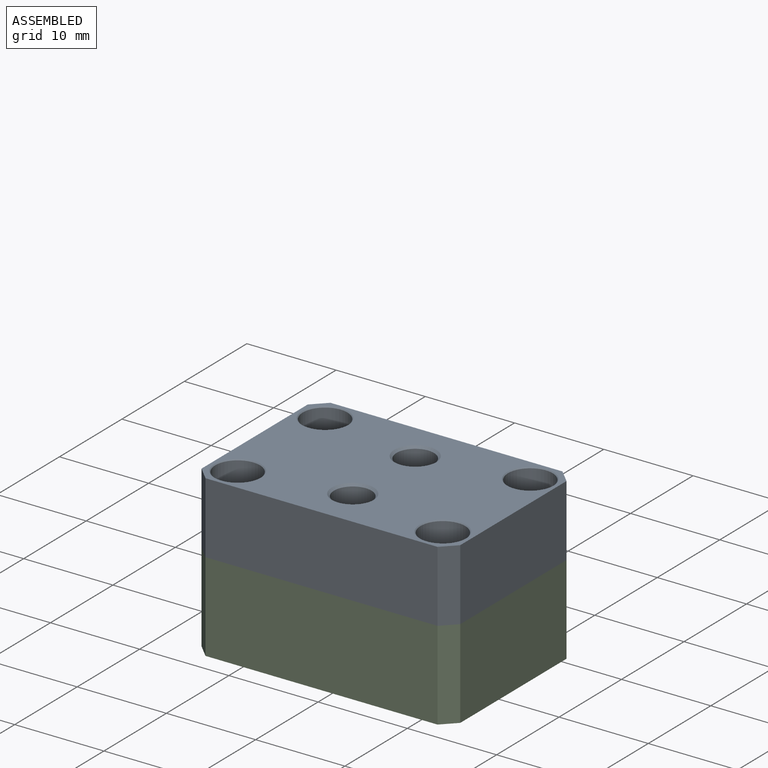
[diagram: assembled view]
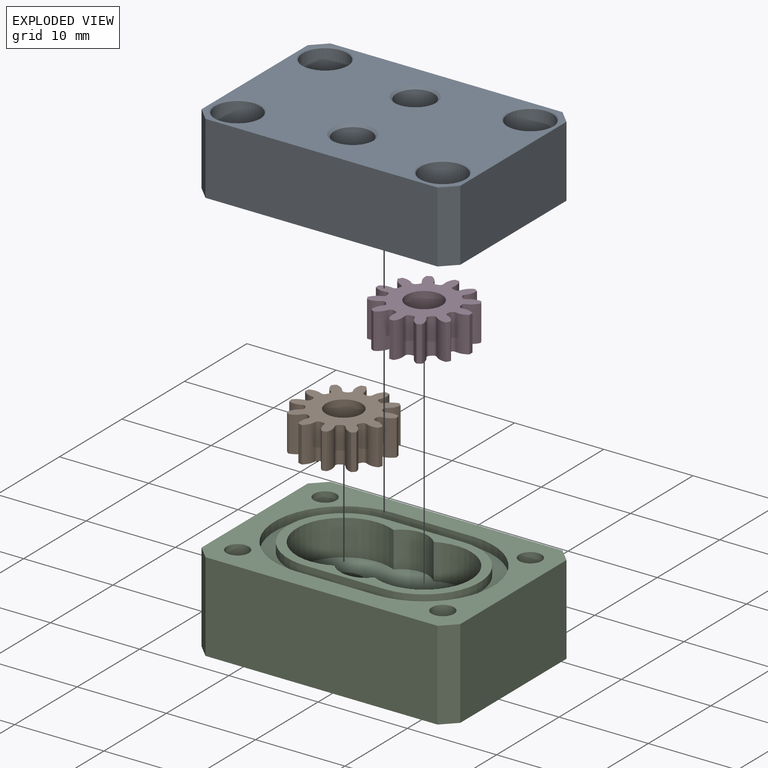
[diagram: exploded view]
GUIDED TOUR — MATED ASSEMBLY (Onshape document 589105403dcf590fb49bca01, AutoMate assembly 589105403dcf590fb49bca01_4c5dc9ea60f4bff894261a25_c35e67f6f5a449544dfd4073_default)

This assembly has 4 components, labeled P0..P3 below (a component is one placed occurrence of a part; the same part can appear more than once), held together by 3 mates. A mate is a constraint between two components; its type names the relative motion it leaves free:
  FASTENED — locks the two components together rigidly (no relative motion),
  REVOLUTE — leaves rotation about the listed axis free (a hinge).
Axis/direction vectors are unit vectors and 'through' points are millimeter coordinates, both in the assembly's world frame.

MATES
  1. REVOLUTE "Revolute 1": P3 <-> P2, axis (0.000, 0.000, -1.000) through (-5.97, -8.78, -4.07) mm
  2. FASTENED "Fastened 1": P0 <-> P2, direction (0.000, 0.000, -1.000) through (-10.47, -8.78, -0.07) mm
  3. REVOLUTE "Revolute 2": P1 <-> P2, axis (0.000, 0.000, -1.000) through (-14.97, -8.78, -4.07) mm

ASSEMBLY ORDER
  1. P2 — the base component [order heuristic]
  2. P1 — core [order heuristic]
  3. P3 — core [order heuristic]
  4. P0 [order verified]
Order-tag legend:
  [order verified] — this step's position reverses a verified removal order: the component was checked to insert without passing through the ones already placed.
  [order heuristic] — the first 3 components form the assembly's core: parts whose collision-free extraction could not be verified, listed in mate-graph order.

Of the 4 components, 1 carries the full construction recipe — the FeatureScript program that regenerates the part's solid from scratch; the rest are supplied as boundary geometry only.
Each toured component is shown spotlighted twice — in the assembled view, then in the exploded view, where a leader line traces a displaced component back to its assembled socket (saturated green if recipe-attached, orange if geometry-only; every other component desaturated gray) — followed by its recipe or geometry summary and the mates that hold it.
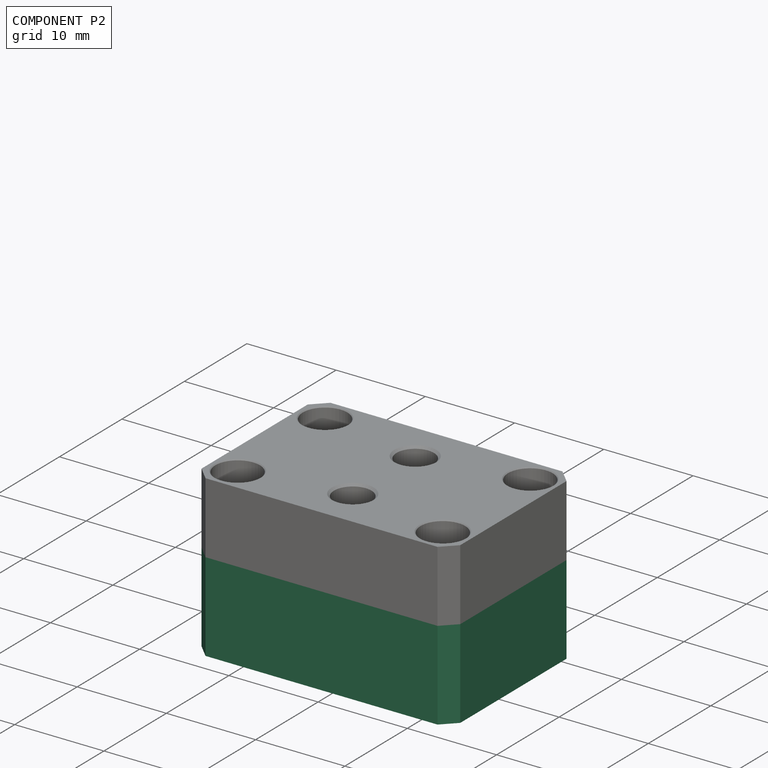
[diagram: component P2 — assembled]
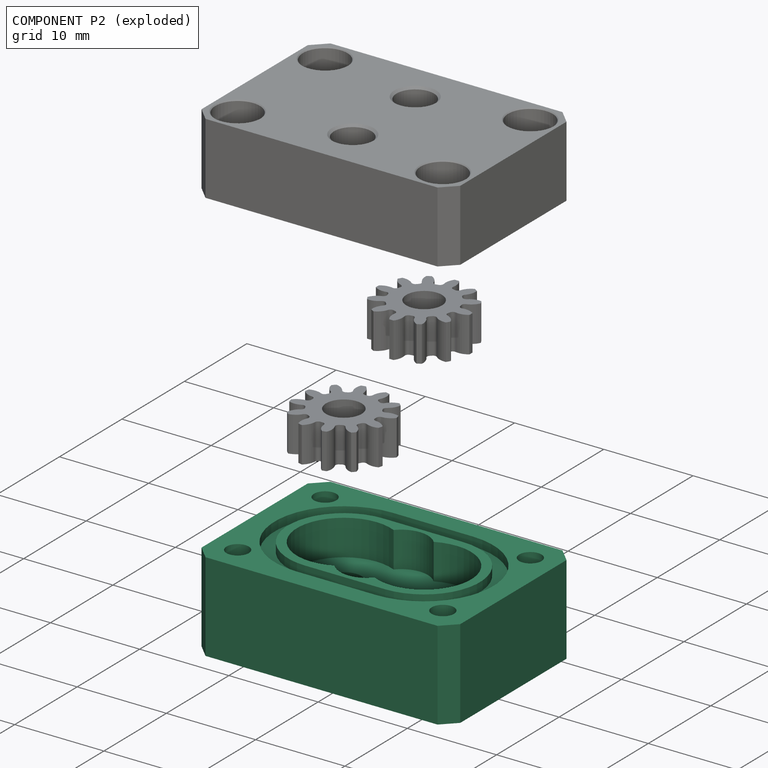
[diagram: component P2 — exploded]
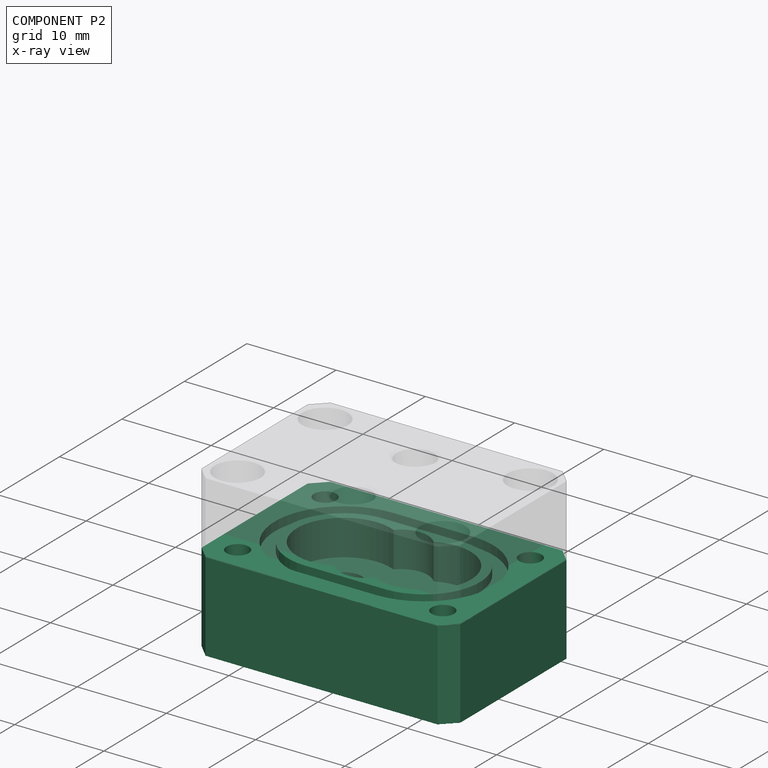
[diagram: component P2 — x-ray view]
COMPONENT P2 — recipe-attached (CADFS 00490669, mesh-verified: the recipe's output STEP matches this component's geometry to below the mesh-comparison resolution (tessellation chordal tolerance ~0.0549 mm)).
Held by: REVOLUTE mate "Revolute 1" to P3; FASTENED mate "Fastened 1" to P0; REVOLUTE mate "Revolute 2" to P1.
Construction recipe (FeatureScript — the CAD program that rebuilds this solid; sketch coordinates are in the units given by the * unit suffixes, e.g. mm):

FeatureScript 1511;
import(path : "onshape/std/geometry.fs", version : "1511.0");
import(path : "onshape/std/common.fs", version : "1511.0");
const mm = millimeter;
const VERTEX = EntityType.VERTEX;
const EDGE = EntityType.EDGE;
const FACE = EntityType.FACE;
const BODY = EntityType.BODY;
function v(x, y){return vector(x, y);}
function OD(order){return orderDisambiguation(order);}
function OSD(set){return originalSetDisambiguation(set);}
function TD(topology){return topologyDisambiguation(topology);}
function TDD(query){return trueDependencyDisambiguation(query);}
function sQuery(a, b, c) {return sketchEntityQuery(a, b, c);}

annotation { "Feature Type Name" : "Feature", "Feature Type Description" : "" }
export const myFeature = defineFeature(function(context is Context, id is Id, definition is map)
    precondition{}
    {
        {
            var Q0;
            Q0=qCreatedBy(makeId("Top.planeOp"),FACE);
            var sketch = newSketch(context, id + "F0", { "sketchPlane" : qUnion([Q0])});
            skLineSegment(sketch, "E0.bottom", {"start": v(0, 0) * mm, "end": v(29, 0) * mm});
            skLineSegment(sketch, "E0.top", {"start": v(0, -20) * mm, "end": v(29, -20) * mm});
            skLineSegment(sketch, "E0.left", {"start": v(0, 0) * mm, "end": v(0, -20) * mm});
            skLineSegment(sketch, "E0.right", {"start": v(29, 0) * mm, "end": v(29, -20) * mm});
            skLineSegment(sketch, "E1", {"start": v(0, -10) * mm, "end": v(29, -10) * mm, "construction": true});
            skArc(sketch, "E2", {"start": v(16.74, -14.74) * mm, "mid": v(24.25, -10) * mm, "end": v(16.74, -5.26) * mm});
            skCircle(sketch, "E3", {"center": v(10, -10) * mm, "radius": 2 * mm});
            skCircle(sketch, "E4", {"center": v(19, -10) * mm, "radius": 2 * mm});
            skLineSegment(sketch, "E5", {"start": v(0, -3) * mm, "end": v(3, -3) * mm, "construction": true});
            skLineSegment(sketch, "E6", {"start": v(3, -3) * mm, "end": v(3, 0) * mm, "construction": true});
            skCircle(sketch, "E7", {"center": v(3, -3) * mm, "radius": 1.25 * mm});
            skPoint(sketch, "E8", {"position": v(14.5, -10) * mm});
            skCircle(sketch, "E9.0.1.0", {"center": v(3, -17) * mm, "radius": 1.25 * mm});
            skCircle(sketch, "E9.1.0.0", {"center": v(26, -3) * mm, "radius": 1.25 * mm});
            skCircle(sketch, "E9.1.1.0", {"center": v(26, -17) * mm, "radius": 1.25 * mm});
            skLineSegment(sketch, "E9.direction1", {"start": v(3, -3) * mm, "end": v(26, -3) * mm, "construction": true});
            skLineSegment(sketch, "E9.direction2", {"start": v(3, -3) * mm, "end": v(3, -17) * mm, "construction": true});
            skArc(sketch, "E10", {"start": v(10, -3.75) * mm, "mid": v(3.75, -10) * mm, "end": v(10, -16.25) * mm});
            skArc(sketch, "E11", {"start": v(19, -16.25) * mm, "mid": v(25.25, -10) * mm, "end": v(19, -3.75) * mm});
            skLineSegment(sketch, "E12", {"start": v(10, -3.75) * mm, "end": v(19, -3.75) * mm});
            skLineSegment(sketch, "E13", {"start": v(10, -16.25) * mm, "end": v(19, -16.25) * mm});
            skLineSegment(sketch, "E14.0", {"start": v(10, -17.75) * mm, "end": v(19, -17.75) * mm});
            skArc(sketch, "E14.1", {"start": v(10, -2.25) * mm, "mid": v(2.25, -10) * mm, "end": v(10, -17.75) * mm});
            skLineSegment(sketch, "E14.2", {"start": v(10, -2.25) * mm, "end": v(19, -2.25) * mm});
            skArc(sketch, "E14.3", {"start": v(19, -17.75) * mm, "mid": v(26.75, -10) * mm, "end": v(19, -2.25) * mm});
            skLineSegment(sketch, "E15", {"start": v(0, -7.25) * mm, "end": v(29, -7.25) * mm, "construction": true});
            skLineSegment(sketch, "E16", {"start": v(0, -12.75) * mm, "end": v(29, -12.75) * mm, "construction": true});
            skArc(sketch, "E17", {"start": v(16.74, -5.26) * mm, "mid": v(14.5, -4.25) * mm, "end": v(12.26, -5.26) * mm});
            skArc(sketch, "E18", {"start": v(12.26, -14.74) * mm, "mid": v(14.5, -15.75) * mm, "end": v(16.74, -14.74) * mm});
            skArc(sketch, "E19.trimOffspring", {"start": v(12.26, -5.26) * mm, "mid": v(4.75, -10) * mm, "end": v(12.26, -14.74) * mm});
            skArc(sketch, "E20.0", {"start": v(10, -2.95) * mm, "mid": v(2.95, -10) * mm, "end": v(10, -17.05) * mm, "construction": true});
            skLineSegment(sketch, "E20.1", {"start": v(10, -2.95) * mm, "end": v(19, -2.95) * mm, "construction": true});
            skArc(sketch, "E20.2", {"start": v(19, -17.05) * mm, "mid": v(26.05, -10) * mm, "end": v(19, -2.95) * mm, "construction": true});
            skLineSegment(sketch, "E20.3", {"start": v(10, -17.05) * mm, "end": v(19, -17.05) * mm, "construction": true});
            skSolve(sketch);
        }
        {
            var Q0;
            Q0=makeQuery(id+"F0.imprint","IMPRINT",FACE,{"disambiguationData":[TD([[makeQuery(id+"F0.imprint","IMPRINT",EDGE,{"derivedFrom":sQuery(id+"F0.wireOp",EDGE,"E0.bottom")}),-1.0]])]});
            var Q1;
            Q1=makeQuery(id+"F0.imprint","IMPRINT",FACE,{"disambiguationData":[TD([[makeQuery(id+"F0.imprint","IMPRINT",EDGE,{"derivedFrom":sQuery(id+"F0.wireOp",EDGE,"MZw8L1mY-04MB-L0nq-oH4W-q9KqwQQnYDyC")}),-1.0]])]});
            var Q2;
            Q2=makeQuery(id+"F0.imprint","IMPRINT",FACE,{"disambiguationData":[TD([[makeQuery(id+"F0.imprint","IMPRINT",EDGE,{"derivedFrom":sQuery(id+"F0.wireOp",EDGE,"MZw8L1mY-04MB-L0nq-oH4W-q9KqwQQnYDyC")}),1.0]])]});
            var Q3;
            Q3=makeQuery(id+"F0.imprint","IMPRINT",FACE,{"disambiguationData":[TD([[makeQuery(id+"F0.imprint","IMPRINT",EDGE,{"derivedFrom":sQuery(id+"F0.wireOp",EDGE,"E4")}),1.0]])]});
            var Q4;
            Q4=makeQuery(id+"F0.imprint","IMPRINT",FACE,{"disambiguationData":[TD([[makeQuery(id+"F0.imprint","IMPRINT",EDGE,{"derivedFrom":sQuery(id+"F0.wireOp",EDGE,"E10")}),-1.0]])]});
            var Q5;
            Q5=makeQuery(id+"F0.imprint","IMPRINT",FACE,{"disambiguationData":[TD([[makeQuery(id+"F0.imprint","IMPRINT",EDGE,{"derivedFrom":sQuery(id+"F0.wireOp",EDGE,"E2")}),1.0]])]});
            var Q6;
            Q6=makeQuery(id+"F0.imprint","IMPRINT",FACE,{"disambiguationData":[TD([[makeQuery(id+"F0.imprint","IMPRINT",EDGE,{"derivedFrom":sQuery(id+"F0.wireOp",EDGE,"E2")}),-1.0]])]});
            var Q7;
            Q7=makeQuery(id+"F0.imprint","IMPRINT",FACE,{"disambiguationData":[TD([[makeQuery(id+"F0.imprint","IMPRINT",EDGE,{"derivedFrom":sQuery(id+"F0.wireOp",EDGE,"E9.0.1.0")}),1.0]])]});
            var Q8;
            Q8=makeQuery(id+"F0.imprint","IMPRINT",FACE,{"disambiguationData":[TD([[makeQuery(id+"F0.imprint","IMPRINT",EDGE,{"derivedFrom":sQuery(id+"F0.wireOp",EDGE,"E9.1.0.0")}),1.0]])]});
            extrude(context, id + "F1", {"entities" : qUnion([Q0, Q1, Q2, Q3, Q4, Q5, Q6, Q7, Q8]), "oppositeDirection" : true, "depth" : 10 * mm, "offsetDistance" : 25 * mm});
        }
        {
            var Q0;
            Q0=makeQuery(id+"F0.imprint","IMPRINT",FACE,{"disambiguationData":[TD([[makeQuery(id+"F0.imprint","IMPRINT",EDGE,{"derivedFrom":sQuery(id+"F0.wireOp",EDGE,"E7")}),1.0]])]});
            var Q1;
            Q1=makeQuery(id+"F0.imprint","IMPRINT",FACE,{"disambiguationData":[TD([[makeQuery(id+"F0.imprint","IMPRINT",EDGE,{"derivedFrom":sQuery(id+"F0.wireOp",EDGE,"E9.1.0.0")}),1.0]])]});
            var Q2;
            Q2=makeQuery(id+"F0.imprint","IMPRINT",FACE,{"disambiguationData":[TD([[makeQuery(id+"F0.imprint","IMPRINT",EDGE,{"derivedFrom":sQuery(id+"F0.wireOp",EDGE,"E9.1.1.0")}),1.0]])]});
            var Q3;
            Q3=makeQuery(id+"F0.imprint","IMPRINT",FACE,{"disambiguationData":[TD([[makeQuery(id+"F0.imprint","IMPRINT",EDGE,{"derivedFrom":sQuery(id+"F0.wireOp",EDGE,"E9.0.1.0")}),1.0]])]});
            extrude(context, id + "F2", {"entities" : qUnion([Q0, Q1, Q2, Q3]), "operationType" : NewBodyOperationType.REMOVE, "oppositeDirection" : true, "depth" : 5 * mm, "offsetDistance" : 25 * mm});
        }
        {
            var Q0;
            Q0=makeQuery(id+"F0.imprint","IMPRINT",FACE,{"disambiguationData":[TD([[makeQuery(id+"F0.imprint","IMPRINT",EDGE,{"derivedFrom":sQuery(id+"F0.wireOp",EDGE,"E10")}),-1.0]])]});
            extrude(context, id + "F3", {"entities" : qUnion([Q0]), "operationType" : NewBodyOperationType.REMOVE, "oppositeDirection" : true, "depth" : 1 * mm, "offsetDistance" : 25 * mm});
        }
        {
            var Q0;
            Q0=makeQuery(id+"F0.imprint","IMPRINT",FACE,{"disambiguationData":[TD([[makeQuery(id+"F0.imprint","IMPRINT",EDGE,{"derivedFrom":sQuery(id+"F0.wireOp",EDGE,"E4")}),1.0]])]});
            extrude(context, id + "F4", {"entities" : qUnion([Q0]), "operationType" : NewBodyOperationType.REMOVE, "oppositeDirection" : true, "depth" : 8 * mm, "offsetDistance" : 25 * mm});
        }
        {
            var Q0;
            Q0=makeQuery(id+"F0.imprint","IMPRINT",FACE,{"disambiguationData":[TD([[makeQuery(id+"F0.imprint","IMPRINT",EDGE,{"derivedFrom":sQuery(id+"F0.wireOp",EDGE,"E2")}),1.0]])]});
            extrude(context, id + "F5", {"entities" : qUnion([Q0]), "operationType" : NewBodyOperationType.REMOVE, "oppositeDirection" : true, "depth" : 4 * mm, "offsetDistance" : 25 * mm});
        }
        {
            var Q0;
            Q0=makeQuery(id+"F1.opExtrude","CAP_FACE",FACE,{"disambiguationData":[OSD([sQuery(id+"F0.wireOp",EDGE,"E0.bottom"),sQuery(id+"F0.wireOp",EDGE,"E0.top"),sQuery(id+"F0.wireOp",EDGE,"E0.left"),sQuery(id+"F0.wireOp",EDGE,"E0.right"),sQuery(id+"F0.wireOp",EDGE,"E3"),sQuery(id+"F0.wireOp",EDGE,"E7"),sQuery(id+"F0.wireOp",EDGE,"E9.0.1.0"),sQuery(id+"F0.wireOp",EDGE,"E9.1.0.0"),sQuery(id+"F0.wireOp",EDGE,"E9.1.1.0")])],"isStart":false});
            var sketch = newSketch(context, id + "F6", { "sketchPlane" : qUnion([Q0])});
            skLineSegment(sketch, "E21", {"start": v(14.5, 0) * mm, "end": v(14.5, 20) * mm, "construction": true});
            skCircle(sketch, "E22", {"center": v(14.5, 3) * mm, "radius": 1.25 * mm});
            skCircle(sketch, "E23", {"center": v(14.5, 17) * mm, "radius": 1.25 * mm});
            skCircle(sketch, "E24", {"center": v(10, 10) * mm, "radius": 4 * mm});
            skSolve(sketch);
        }
        {
            var Q0;
            Q0=makeQuery(id+"F6.imprint","IMPRINT",FACE,{"disambiguationData":[TD([[makeQuery(id+"F6.imprint","IMPRINT",EDGE,{"derivedFrom":sQuery(id+"F6.wireOp",EDGE,"E24")}),1.0]])]});
            extrude(context, id + "F7", {"entities" : qUnion([Q0]), "operationType" : NewBodyOperationType.REMOVE, "oppositeDirection" : true, "depth" : 1 * mm, "offsetDistance" : 25 * mm});
        }
        {
            var Q0;
            Q0=makeQuery(id+"F1.opExtrude","SWEPT_EDGE",EDGE,{"disambiguationData":[OSD([sQuery(id+"F0.wireOp",EDGE,"E0.top"),sQuery(id+"F0.wireOp",EDGE,"E0.right")])]});
            var Q1;
            Q1=makeQuery(id+"F1.opExtrude","SWEPT_EDGE",EDGE,{"disambiguationData":[OSD([sQuery(id+"F0.wireOp",EDGE,"E0.top"),sQuery(id+"F0.wireOp",EDGE,"E0.left")])]});
            var Q2;
            Q2=makeQuery(id+"F1.opExtrude","SWEPT_EDGE",EDGE,{"disambiguationData":[OSD([sQuery(id+"F0.wireOp",EDGE,"E0.bottom"),sQuery(id+"F0.wireOp",EDGE,"E0.left")])]});
            var Q3;
            Q3=makeQuery(id+"F1.opExtrude","SWEPT_EDGE",EDGE,{"disambiguationData":[OSD([sQuery(id+"F0.wireOp",EDGE,"E0.bottom"),sQuery(id+"F0.wireOp",EDGE,"E0.right")])]});
            chamfer(context, id + "F8", {"entities" : qUnion([Q0, Q1, Q2, Q3]), "width" : 1.5 * mm, "tangentPropagation" : true});
        }
    });
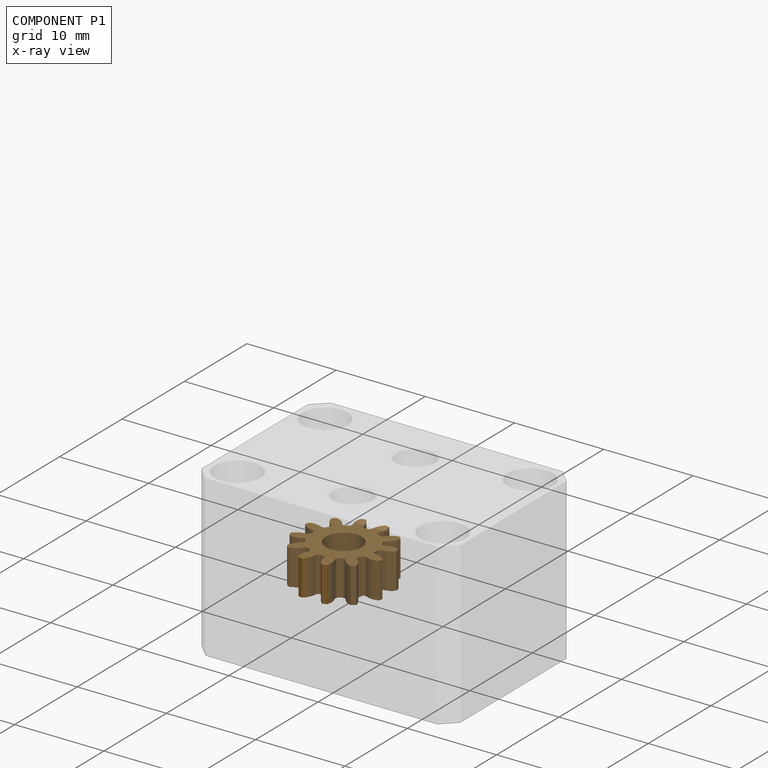
[diagram: component P1 — x-ray view]
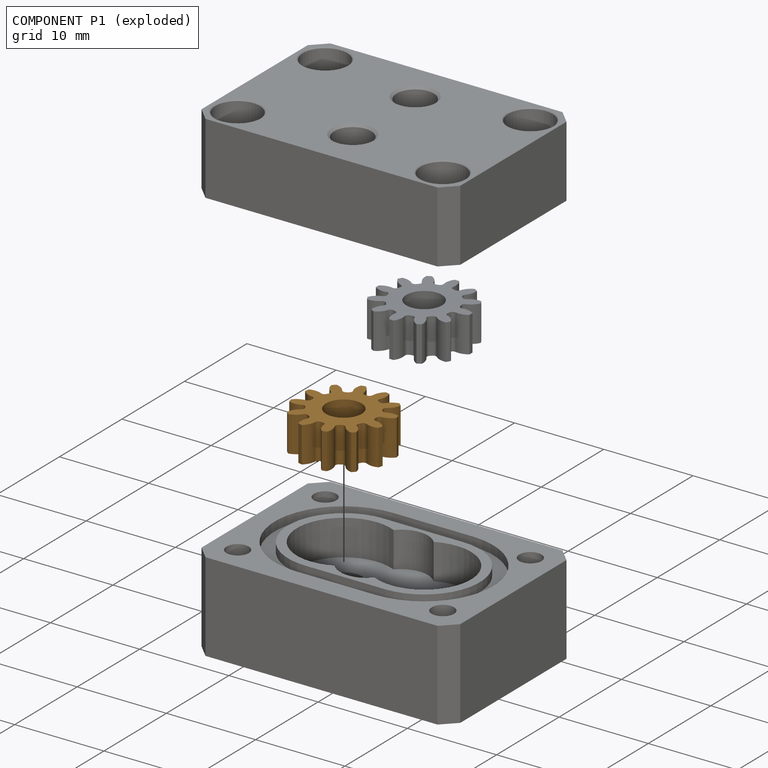
[diagram: component P1 — exploded]
COMPONENT P1 — geometry summary (no construction recipe available for this part):
  bounding box: 10.5 x 10.5 x 4.0 mm
  B-rep topology: 1 solid, 75 faces, 440 edges
  volume: 192 mm^3 (44% of its bounding box)
  symmetry: 2-fold rotationally symmetric about the x axis; 6-fold rotationally symmetric about the y axis; 2-fold rotationally symmetric about the z axis; mirror-symmetric across its x mid-plane, y mid-plane, z mid-plane
Held by: REVOLUTE mate "Revolute 2" to P2.
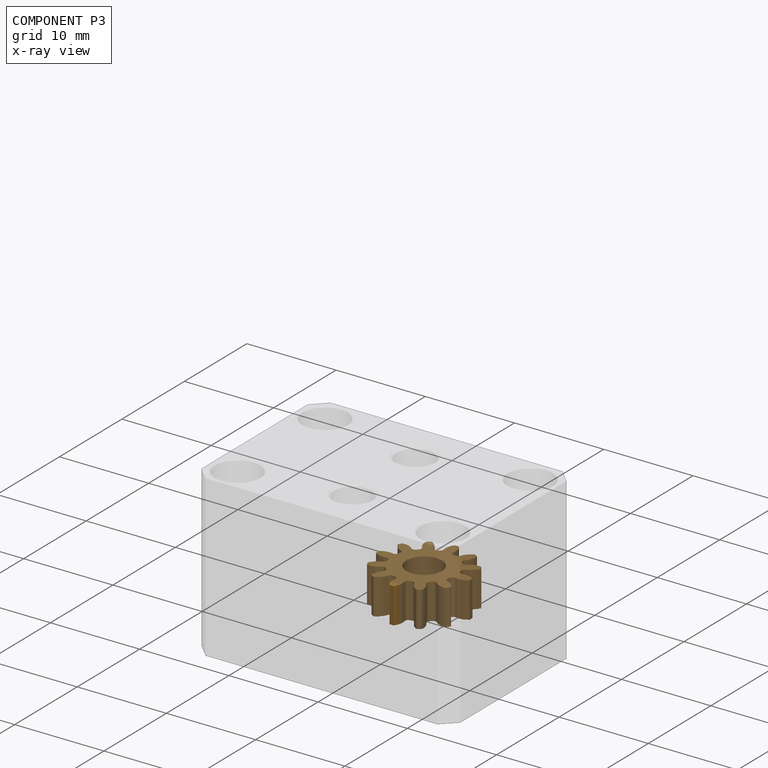
[diagram: component P3 — x-ray view]
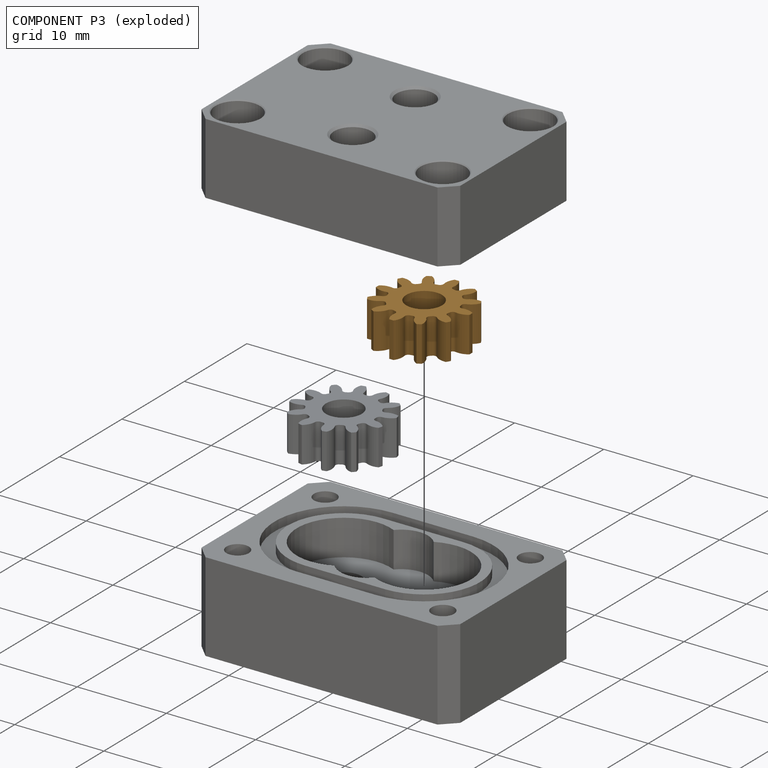
[diagram: component P3 — exploded]
COMPONENT P3 — geometry summary (no construction recipe available for this part):
  bounding box: 10.5 x 10.5 x 4.0 mm
  B-rep topology: 1 solid, 75 faces, 440 edges
  volume: 192 mm^3 (44% of its bounding box)
  symmetry: 2-fold rotationally symmetric about the x axis; 6-fold rotationally symmetric about the y axis; 2-fold rotationally symmetric about the z axis; mirror-symmetric across its x mid-plane, y mid-plane, z mid-plane
Held by: REVOLUTE mate "Revolute 1" to P2.
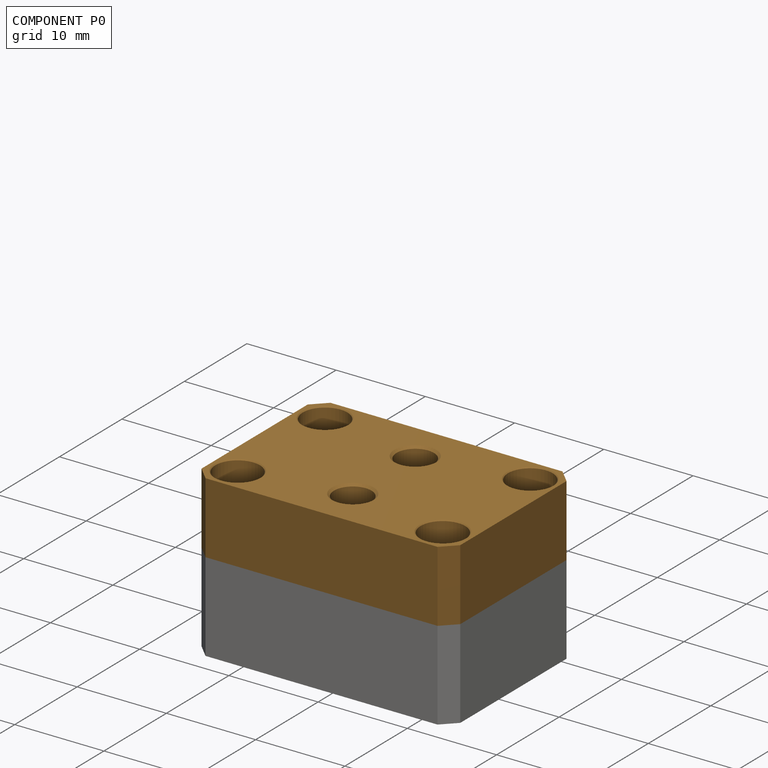
[diagram: component P0 — assembled]
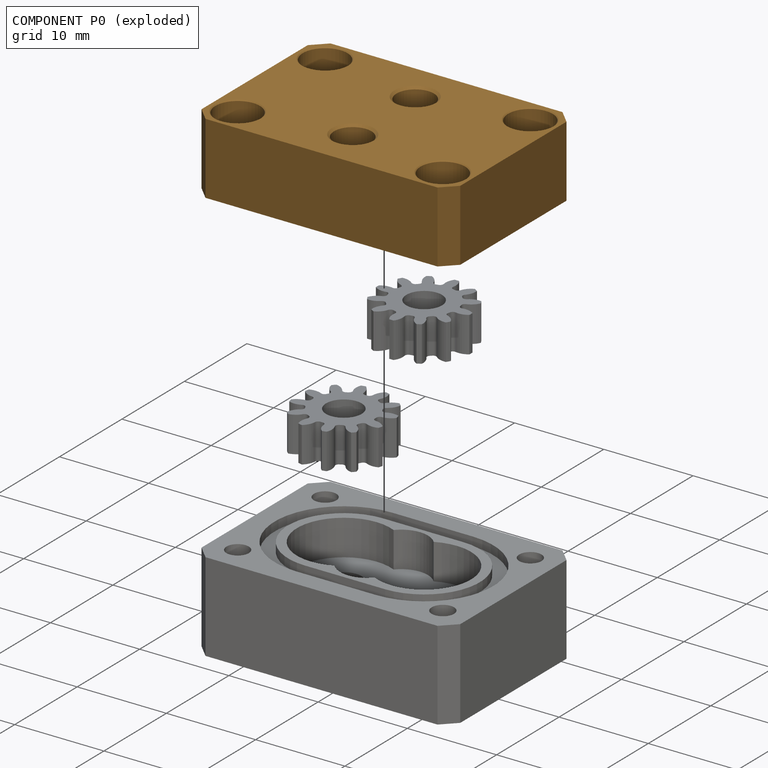
[diagram: component P0 — exploded]
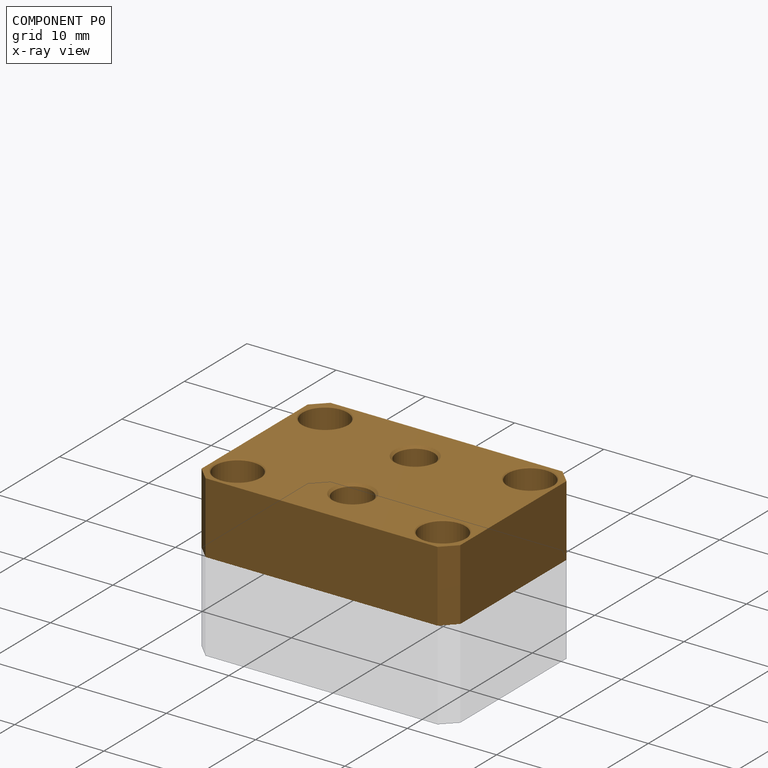
[diagram: component P0 — x-ray view]
COMPONENT P0 — geometry summary (no construction recipe available for this part):
  bounding box: 29.0 x 20.0 x 8.0 mm
  B-rep topology: 1 solid, 40 faces, 176 edges
  volume: 3982 mm^3 (86% of its bounding box)
  symmetry: 2-fold rotationally symmetric about the z axis; mirror-symmetric across its x mid-plane, y mid-plane
Held by: FASTENED mate "Fastened 1" to P2.
PROVENANCE & LICENSES
Assembly (occurrences, transforms, mates, per-part STEP geometry): AutoMate dataset, Zenodo record 7776208, CC0.
Construction recipes: CADFS (HuggingFace VladPyatov/CADFS, CC-BY-4.0, layered over the ABC dataset), FeatureScript reconstruction programs keyed by ABC model id.
Join: ABC meta listings map ABC model id -> Onshape documentId; within a shared document, parts are matched by geometric signature (bounding-box dims + volume at 0.1% relative tolerance, exact B-rep face/solid counts).
Verification: 1 of this assembly's 4 components carries a recipe attachment, and every attachment is mesh-verified: the CADFS STEP and the AutoMate member STEP were compared as meshes in their shared local frame (symmetric sampled-point-to-mesh distance); worst across the 1 attachment: below the mesh-comparison resolution (tessellation chordal tolerance ~0.0549 mm) on a 37 mm part.
Renders: orthographic iso camera (az 35 / el 25); the floor grid conveys scale (grid pitch printed in each image; no ruler). In the exploded view each component is displaced by its stored offset vector: the offsets alone carry the explosion direction (mate normal/axis signs are not orientation cues and do not encode it), and separation distances are assigned per mate-chain, not proportionally to assembly-order depth.
